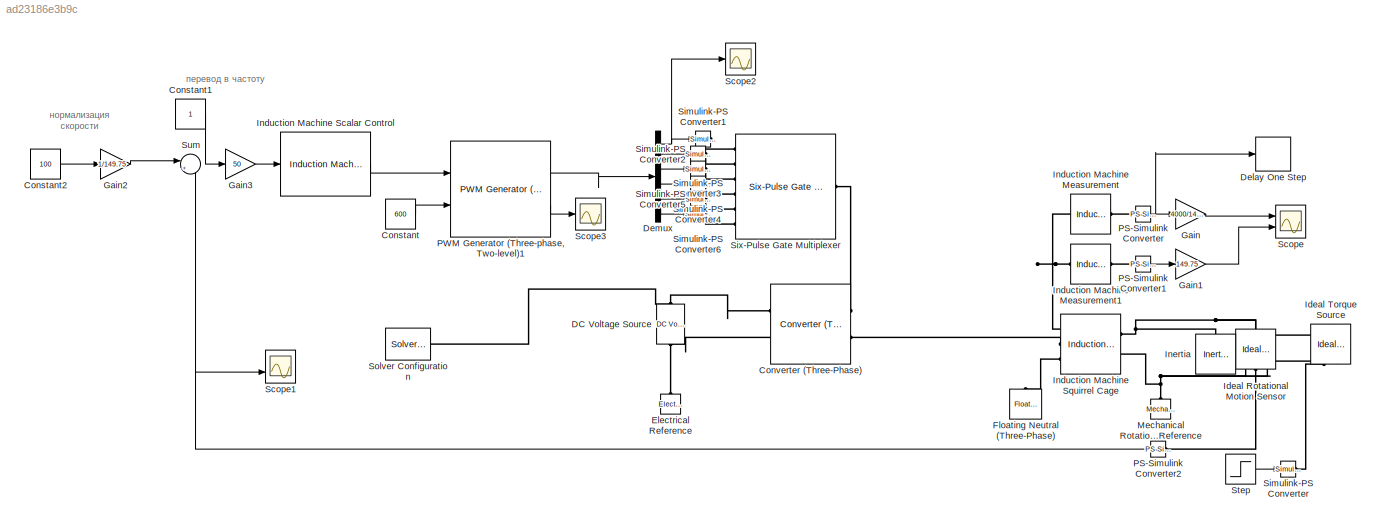
MODEL slx_ad23186e3b9c
KIND model
CONFIG AbsTol = auto
CONFIG EnableMultiTasking = off
CONFIG FixedStep = 1e-7
CONFIG MaxStep = auto
CONFIG MinStep = auto
CONFIG RelTol = 1e-5
CONFIG SampleTimeConstraint = Unconstrained
CONFIG SolverName = FixedStepAuto
CONFIG StartTime = 0.0
CONFIG StopTime = 1
BLOCK [Constant] Constant
  Value = 600
BLOCK [Constant] Constant1
BLOCK [Constant] Constant2
  Value = 100
BLOCK [Reference] Converter (Three-Phase)  REF=ee_lib/Semiconductors &
Converters/Converters/Converter
(Three-Phase)
  Ports = [0, 0, 0, 0, 0, 2, 2]
  SourceBlock = ee_lib/Semiconductors &\nConverters/Converters/Converter\n(Three-Phase)
  SourceProductBaseCode = PS
  SourceType = Converter\n(Three-Phase)
BLOCK [Reference] DC Voltage Source  REF=fl_lib/Electrical/Electrical Sources/DC Voltage Source
  NameLocation = right
  Ports = [0, 0, 0, 0, 0, 1, 1]
  SourceBlock = fl_lib/Electrical/Electrical Sources/DC Voltage Source
  SourceProductBaseCode = SS
  SourceType = DC Voltage Source
BLOCK [Delay] Delay One Step
  Commented = on
  DelayLength = 1
  InputPortMap = u0
  Ports = [1, 1]
BLOCK [Demux] Demux
  Outputs = 6
  Ports = [1, 6]
BLOCK [Reference] Electrical Reference  REF=fl_lib/Electrical/Electrical Elements/Electrical Reference
  NameLocation = right
  Ports = [0, 0, 0, 0, 0, 1]
  SourceBlock = fl_lib/Electrical/Electrical Elements/Electrical Reference
  SourceProductBaseCode = SS
  SourceType = Electrical Reference
BLOCK [Reference] Floating Neutral (Three-Phase)  REF=ee_lib/Connectors &
References/Floating Neutral
(Three-Phase)
  NameLocation = right
  Ports = [0, 0, 0, 0, 0, 1]
  SourceBlock = ee_lib/Connectors &\nReferences/Floating Neutral\n(Three-Phase)
  SourceProductBaseCode = PS
  SourceType = Floating Neutral\n(Three-Phase)
BLOCK [Gain] Gain
  Commented = on
  Gain = 4000/149.75
BLOCK [Gain] Gain1
  Commented = on
  Gain = 149.75
BLOCK [Gain] Gain2
  Gain = 1/149.75
BLOCK [Gain] Gain3
  Gain = 50
BLOCK [Reference] Ideal Rotational Motion Sensor  REF=fl_lib/Mechanical/Mechanical Sensors/Ideal Rotational
Motion Sensor
  NameLocation = left
  Ports = [0, 0, 0, 0, 0, 1, 3]
  SourceBlock = fl_lib/Mechanical/Mechanical Sensors/Ideal Rotational\nMotion Sensor
  SourceProductBaseCode = SS
  SourceType = Ideal Rotational\nMotion Sensor
BLOCK [Reference] Ideal Torque Source  REF=fl_lib/Mechanical/Mechanical Sources/Ideal Torque Source
  NameLocation = right
  Ports = [0, 0, 0, 0, 0, 1, 2]
  SourceBlock = fl_lib/Mechanical/Mechanical Sources/Ideal Torque Source
  SourceProductBaseCode = SS
  SourceType = Ideal Torque Source
BLOCK [Reference] Induction Machine Measurement  REF=ee_lib/Electromechanical/Asynchronous/Induction Machine
Measurement
  Commented = on
  Ports = [0, 0, 0, 0, 0, 1, 1]
  SourceBlock = ee_lib/Electromechanical/Asynchronous/Induction Machine\nMeasurement
  SourceProductBaseCode = PS
  SourceType = Induction Machine\nMeasurement
BLOCK [Reference] Induction Machine Measurement1  REF=ee_lib/Electromechanical/Asynchronous/Induction Machine
Measurement
  Commented = on
  Ports = [0, 0, 0, 0, 0, 1, 1]
  SourceBlock = ee_lib/Electromechanical/Asynchronous/Induction Machine\nMeasurement
  SourceProductBaseCode = PS
  SourceType = Induction Machine\nMeasurement
BLOCK [Reference] Induction Machine Scalar Control  REF=eeAsmScalarControl/Induction Machine
Scalar Control
  Ports = [1, 1]
  SourceBlock = eeAsmScalarControl/Induction Machine\nScalar Control
  SourceProductBaseCode = PS
  SourceType = Induction Machine Scalar Control
BLOCK [Reference] Induction Machine Squirrel Cage  REF=ee_lib/Electromechanical/Asynchronous/Induction Machine
Squirrel Cage
  NameLocation = top
  Ports = [0, 0, 0, 0, 0, 2, 3]
  SourceBlock = ee_lib/Electromechanical/Asynchronous/Induction Machine\nSquirrel Cage
  SourceProductBaseCode = PS
  SourceType = Induction Machine\nSquirrel Cage
BLOCK [Reference] Inertia  REF=fl_lib/Mechanical/Rotational Elements/Inertia
  NameLocation = right
  Ports = [0, 0, 0, 0, 0, 1]
  SourceBlock = fl_lib/Mechanical/Rotational Elements/Inertia
  SourceProductBaseCode = SS
  SourceType = Inertia
BLOCK [Reference] Mechanical Rotational Reference  REF=fl_lib/Mechanical/Rotational Elements/Mechanical
Rotational Reference
  NameLocation = right
  Ports = [0, 0, 0, 0, 0, 1]
  SourceBlock = fl_lib/Mechanical/Rotational Elements/Mechanical\nRotational Reference
  SourceProductBaseCode = SS
  SourceType = Mechanical\nRotational Reference
BLOCK [Reference] PS-Simulink Converter  REF=nesl_utility/PS-Simulink
Converter
  Commented = on
  Ports = [0, 1, 0, 0, 0, 1]
  SourceBlock = nesl_utility/PS-Simulink\nConverter
  SourceProductBaseCode = PW,SS
  SourceType = PS-Simulink\nConverter
BLOCK [Reference] PS-Simulink Converter1  REF=nesl_utility/PS-Simulink
Converter
  Commented = on
  Ports = [0, 1, 0, 0, 0, 1]
  SourceBlock = nesl_utility/PS-Simulink\nConverter
  SourceProductBaseCode = PW,SS
  SourceType = PS-Simulink\nConverter
BLOCK [Reference] PS-Simulink Converter2  REF=nesl_utility/PS-Simulink
Converter
  NameLocation = top
  Ports = [0, 1, 0, 0, 0, 1]
  SourceBlock = nesl_utility/PS-Simulink\nConverter
  SourceProductBaseCode = PW,SS
  SourceType = PS-Simulink\nConverter
BLOCK [Reference] PWM Generator (Three-phase, Two-level)1  REF=eePwmGeneratorTwoLevel/PWM Generator
(Three-phase, Two-level)
  Ports = [2, 2]
  SourceBlock = eePwmGeneratorTwoLevel/PWM Generator\n(Three-phase, Two-level)
  SourceProductBaseCode = PS
  SourceType = PWM Generator (three-phase, two-level)
BLOCK [Scope] Scope
  Commented = on
  Floating = off
  NumInputPorts = 2
  Ports = [2]
  ScopeSpecificationString = Simulink.scopes.TimeScopeBlockCfg('CurrentConfiguration', extmgr.ConfigurationSet(extmgr.Configuration('Core','General UI',true),extmgr.Configuration('Core','Source UI',true),extmgr.Configuration('Sources','WiredSimulink',true),extmgr.Configuration('Visuals','Time Domain',true,'SerializedDisplays',{struct('MinYLimReal','-0.0000000000000000000000000000000000009','MaxYLimReal','0.0000000000000000000...<+2231ch>
BLOCK [Scope] Scope1
  Floating = off
  NumInputPorts = 2
  Ports = [2]
  ScopeSpecificationString = Simulink.scopes.TimeScopeBlockCfg('CurrentConfiguration', extmgr.ConfigurationSet(extmgr.Configuration('Core','General UI',true),extmgr.Configuration('Core','Source UI',true),extmgr.Configuration('Sources','WiredSimulink',true,'DataLoggingVariableName','ScopeData1'),extmgr.Configuration('Visuals','Time Domain',true,'SerializedDisplays',{struct('MinYLimReal','-1.00000','MaxYLimReal','1.00000','YLab...<+2103ch>
BLOCK [Scope] Scope2
  Commented = on
  Floating = off
  NumInputPorts = 1
  Ports = [1]
  ScopeSpecificationString = Simulink.scopes.TimeScopeBlockCfg('CurrentConfiguration', extmgr.ConfigurationSet(extmgr.Configuration('Core','General UI',true),extmgr.Configuration('Core','Source UI',true),extmgr.Configuration('Sources','WiredSimulink',true,'DataLoggingVariableName','ScopeData2'),extmgr.Configuration('Visuals','Time Domain',true,'SerializedDisplays',{struct('MinYLimReal','-0.125','MaxYLimReal','1.125','YLabelRe...<+1373ch>
BLOCK [Scope] Scope3
  Commented = on
  Floating = off
  NumInputPorts = 1
  Ports = [1]
  ScopeSpecificationString = Simulink.scopes.TimeScopeBlockCfg('CurrentConfiguration', extmgr.ConfigurationSet(extmgr.Configuration('Core','General UI',true),extmgr.Configuration('Core','Source UI',true),extmgr.Configuration('Sources','WiredSimulink',true,'DataLoggingVariableName','ScopeData3'),extmgr.Configuration('Visuals','Time Domain',true,'SerializedDisplays',{struct('MinYLimReal','-1.25','MaxYLimReal','1.25','YLabelReal...<+1495ch>
BLOCK [Reference] Simulink-PS Converter  REF=nesl_utility/Simulink-PS
Converter
  Ports = [1, 0, 0, 0, 0, 0, 1]
  SourceBlock = nesl_utility/Simulink-PS\nConverter
  SourceProductBaseCode = PW,SS
  SourceType = Simulink-PS\nConverter
BLOCK [Reference] Simulink-PS Converter1  REF=nesl_utility/Simulink-PS
Converter
  Ports = [1, 0, 0, 0, 0, 0, 1]
  SourceBlock = nesl_utility/Simulink-PS\nConverter
  SourceProductBaseCode = PW,SS
  SourceType = Simulink-PS\nConverter
BLOCK [Reference] Simulink-PS Converter2  REF=nesl_utility/Simulink-PS
Converter
  Ports = [1, 0, 0, 0, 0, 0, 1]
  SourceBlock = nesl_utility/Simulink-PS\nConverter
  SourceProductBaseCode = PW,SS
  SourceType = Simulink-PS\nConverter
BLOCK [Reference] Simulink-PS Converter3  REF=nesl_utility/Simulink-PS
Converter
  Ports = [1, 0, 0, 0, 0, 0, 1]
  SourceBlock = nesl_utility/Simulink-PS\nConverter
  SourceProductBaseCode = PW,SS
  SourceType = Simulink-PS\nConverter
BLOCK [Reference] Simulink-PS Converter4  REF=nesl_utility/Simulink-PS
Converter
  Ports = [1, 0, 0, 0, 0, 0, 1]
  SourceBlock = nesl_utility/Simulink-PS\nConverter
  SourceProductBaseCode = PW,SS
  SourceType = Simulink-PS\nConverter
BLOCK [Reference] Simulink-PS Converter5  REF=nesl_utility/Simulink-PS
Converter
  Ports = [1, 0, 0, 0, 0, 0, 1]
  SourceBlock = nesl_utility/Simulink-PS\nConverter
  SourceProductBaseCode = PW,SS
  SourceType = Simulink-PS\nConverter
BLOCK [Reference] Simulink-PS Converter6  REF=nesl_utility/Simulink-PS
Converter
  Ports = [1, 0, 0, 0, 0, 0, 1]
  SourceBlock = nesl_utility/Simulink-PS\nConverter
  SourceProductBaseCode = PW,SS
  SourceType = Simulink-PS\nConverter
BLOCK [Reference] Six-Pulse Gate Multiplexer  REF=ee_lib/Semiconductors &
Converters/Converters/Six-Pulse Gate
Multiplexer
  Ports = [0, 0, 0, 0, 0, 6, 1]
  SourceBlock = ee_lib/Semiconductors &\nConverters/Converters/Six-Pulse Gate\nMultiplexer
  SourceProductBaseCode = PS
  SourceType = Six-Pulse Gate\nMultiplexer
BLOCK [Reference] Solver Configuration  REF=nesl_utility/Solver
Configuration
  Ports = [0, 0, 0, 0, 0, 0, 1]
  SourceBlock = nesl_utility/Solver\nConfiguration
  SourceProductBaseCode = PW,SS
  SourceType = Solver\nConfiguration
BLOCK [Step] Step
  SampleTime = 0
BLOCK [Sum] Sum
  Inputs = |+-
  Ports = [2, 1]
ANNOTATION (root): нормализация скорости
ANNOTATION (root): перевод в частоту
LINE Constant1:1 -> Gain3:1
LINE Constant2:1 -> Gain2:1
LINE Constant:1 -> PWM Generator (Three-phase, Two-level)1:2
NET Demux:1 -> Scope2:1, Simulink-PS Converter1:1
LINE Demux:2 -> Simulink-PS Converter2:1
LINE Demux:3 -> Simulink-PS Converter3:1
LINE Demux:4 -> Simulink-PS Converter4:1
LINE Demux:5 -> Simulink-PS Converter5:1
LINE Demux:6 -> Simulink-PS Converter6:1
LINE Gain1:1 -> Scope:2
LINE Gain2:1 -> Sum:1
LINE Gain3:1 -> Induction Machine Scalar Control:1
LINE Gain:1 -> Scope:1
LINE Induction Machine Scalar Control:1 -> PWM Generator (Three-phase, Two-level)1:1
LINE PS-Simulink Converter1:1 -> Gain1:1
NET PS-Simulink Converter2:1 -> Scope1:2, Sum:2
NET PS-Simulink Converter:1 -> Delay One Step:1, Gain:1
LINE PWM Generator (Three-phase, Two-level)1:1 -> Demux:1
LINE PWM Generator (Three-phase, Two-level)1:2 -> Scope3:1
LINE Step:1 -> Simulink-PS Converter:1
PLINE Converter (Three-Phase):LConn1 -- Six-Pulse Gate Multiplexer:RConn1
PLINE Converter (Three-Phase):LConn2 -- Induction Machine Squirrel Cage:RConn2
PNET net1: Converter (Three-Phase):RConn1 -- DC Voltage Source:LConn1 -- Solver Configuration:RConn1
PNET net2: Converter (Three-Phase):RConn2 -- DC Voltage Source:RConn1 -- Electrical Reference:LConn1
PLINE Floating Neutral (Three-Phase):LConn1 -- Induction Machine Squirrel Cage:RConn3
PNET net3: Ideal Rotational Motion Sensor:LConn1 -- Ideal Torque Source:LConn1 -- Induction Machine Squirrel Cage:LConn1 -- Inertia:LConn1
PNET net4: Ideal Rotational Motion Sensor:RConn1 -- Ideal Torque Source:RConn2 -- Induction Machine Squirrel Cage:LConn2 -- Mechanical Rotational Reference:LConn1
PLINE Ideal Rotational Motion Sensor:RConn2 -- PS-Simulink Converter2:LConn1
PLINE Ideal Torque Source:RConn1 -- Simulink-PS Converter:RConn1
PNET net5: Induction Machine Measurement1:LConn1 -- Induction Machine Measurement:LConn1 -- Induction Machine Squirrel Cage:RConn1
PLINE Induction Machine Measurement1:RConn1 -- PS-Simulink Converter1:LConn1
PLINE Induction Machine Measurement:RConn1 -- PS-Simulink Converter:LConn1
PLINE Simulink-PS Converter1:RConn1 -- Six-Pulse Gate Multiplexer:LConn1
PLINE Simulink-PS Converter2:RConn1 -- Six-Pulse Gate Multiplexer:LConn2
PLINE Simulink-PS Converter3:RConn1 -- Six-Pulse Gate Multiplexer:LConn3
PLINE Simulink-PS Converter4:RConn1 -- Six-Pulse Gate Multiplexer:LConn4
PLINE Simulink-PS Converter5:RConn1 -- Six-Pulse Gate Multiplexer:LConn5
PLINE Simulink-PS Converter6:RConn1 -- Six-Pulse Gate Multiplexer:LConn6
note: NET lines group one-source signal fan-out (src -> all destinations, sorted); 1:1 wires keep LINE; PNET lines group multi-terminal physical nets as a canonical sorted terminal list (undirected conserving connections); 2-terminal nets keep the pairwise PLINE form
